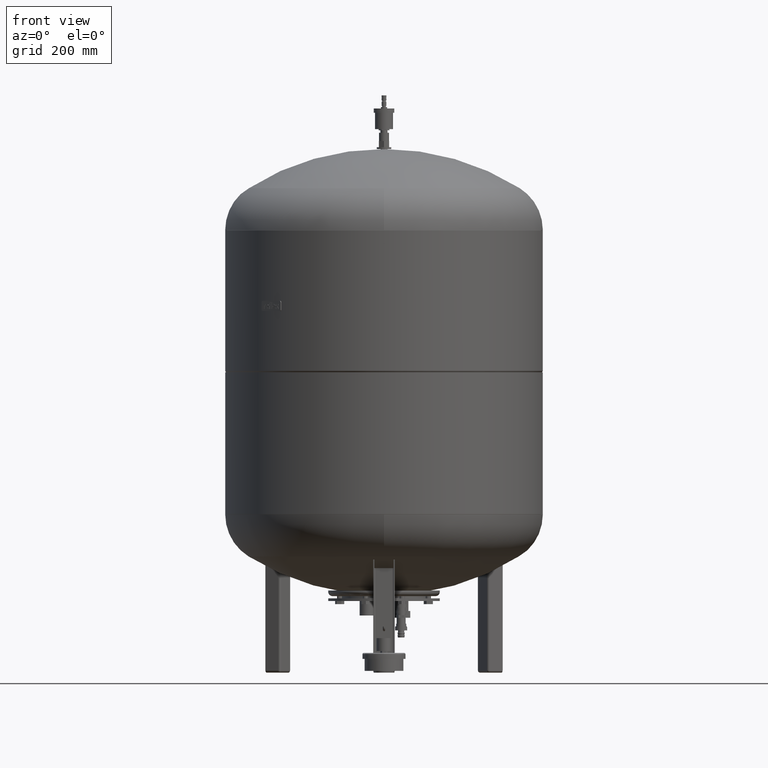
[diagram: clean part render]
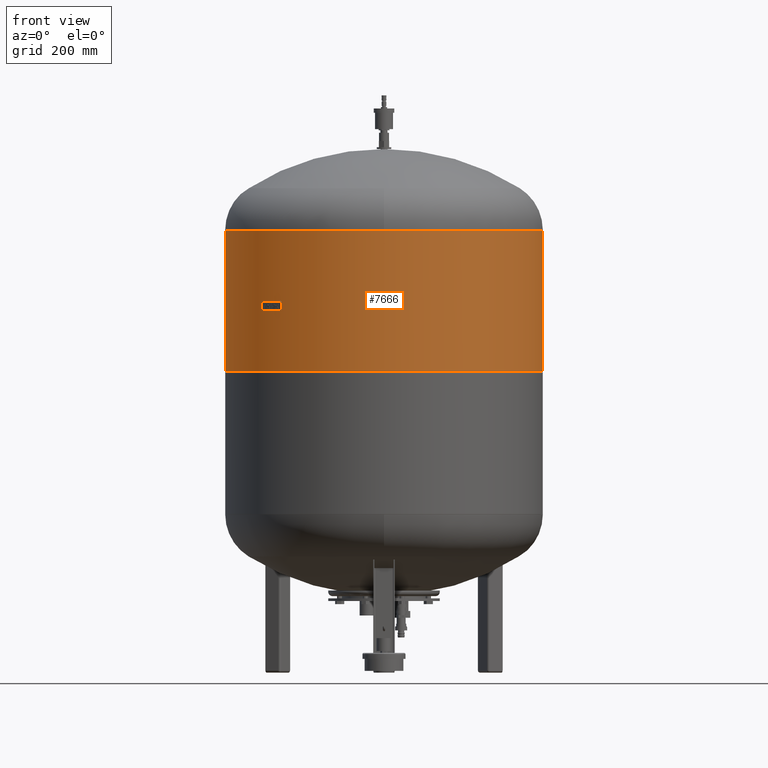
[diagram: same view with one face highlighted and labeled with its STEP entity id]
A machine part, front view. The second image highlights one B-rep face of the part: STEP entity #7666.
In plain terms, the highlighted cylindrical surface (partial cylindrical patch) has radius 370 mm, axis along (0, 0, 1).
Its self-contained STEP definition (entity closure, byte-faithful):
#7625=CARTESIAN_POINT('',(1.668796E-014,0.0,1028.500000000000000));
#7626=DIRECTION('',(0.0,0.0,1.0));
#7627=DIRECTION('',(1.0,0.0,0.0));
#7628=AXIS2_PLACEMENT_3D('',#7625,#7626,#7627);
#7629=CYLINDRICAL_SURFACE('',#7628,370.0);
#7630=CARTESIAN_POINT('',(370.0,0.0,1031.0));
#7631=VERTEX_POINT('',#7630);
#7632=CARTESIAN_POINT('',(369.999999999999770,0.0,703.0));
#7633=VERTEX_POINT('',#7632);
#7634=CARTESIAN_POINT('',(370.0,0.0,1031.0));
#7635=DIRECTION('',(0.0,0.0,-1.0));
#7636=VECTOR('',#7635,328.0);
#7637=LINE('',#7634,#7636);
#7638=EDGE_CURVE('',#7631,#7633,#7637,.T.);
#7639=ORIENTED_EDGE('',*,*,#7638,.F.);
#7640=CARTESIAN_POINT('',(-370.0,-4.531044E-014,1031.0));
#7641=VERTEX_POINT('',#7640);
#7642=CARTESIAN_POINT('',(1.668796E-014,0.0,1031.0));
#7643=DIRECTION('',(0.0,0.0,1.0));
#7644=DIRECTION('',(1.0,0.0,0.0));
#7645=AXIS2_PLACEMENT_3D('',#7642,#7643,#7644);
#7646=CIRCLE('',#7645,370.0);
#7647=EDGE_CURVE('',#7641,#7631,#7646,.T.);
#7648=ORIENTED_EDGE('',*,*,#7647,.F.);
#7649=CARTESIAN_POINT('',(-369.999999999999770,-4.531044E-014,703.0));
#7650=VERTEX_POINT('',#7649);
#7651=CARTESIAN_POINT('',(-370.0,-4.531044E-014,1031.0));
#7652=DIRECTION('',(0.0,0.0,-1.0));
#7653=VECTOR('',#7652,328.0);
#7654=LINE('',#7651,#7653);
#7655=EDGE_CURVE('',#7641,#7650,#7654,.T.);
#7656=ORIENTED_EDGE('',*,*,#7655,.T.);
#7657=CARTESIAN_POINT('',(1.535702E-016,0.0,703.0));
#7658=DIRECTION('',(0.0,0.0,1.0));
#7659=DIRECTION('',(1.0,0.0,0.0));
#7660=AXIS2_PLACEMENT_3D('',#7657,#7658,#7659);
#7661=CIRCLE('',#7660,369.999999999999770);
#7662=EDGE_CURVE('',#7650,#7633,#7661,.T.);
#7663=ORIENTED_EDGE('',*,*,#7662,.T.);
#7664=EDGE_LOOP('',(#7639,#7648,#7656,#7663));
#7665=FACE_OUTER_BOUND('',#7664,.T.);
#7666=ADVANCED_FACE('',(#7665),#7629,.T.);